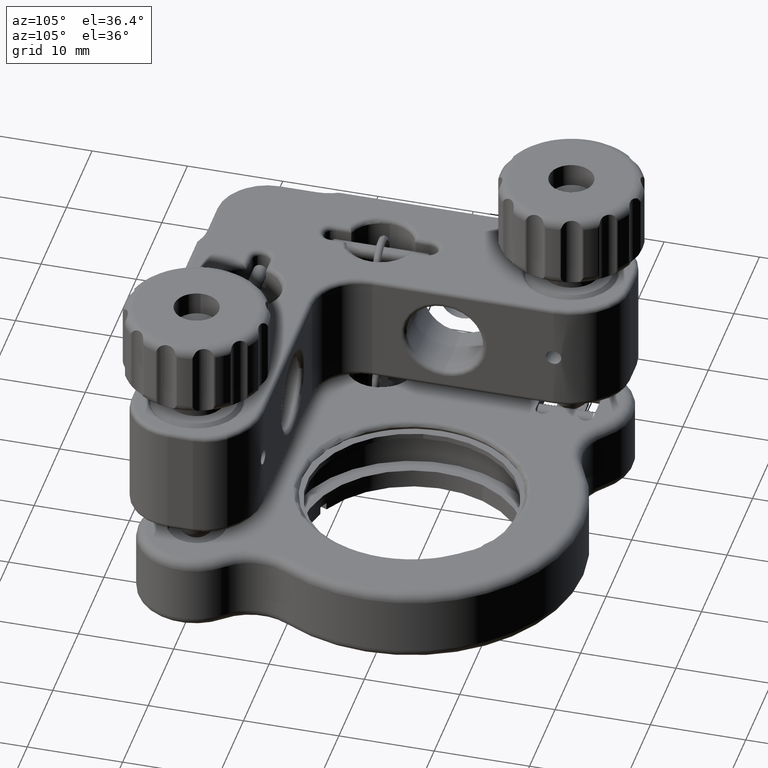
[diagram: clean part render]
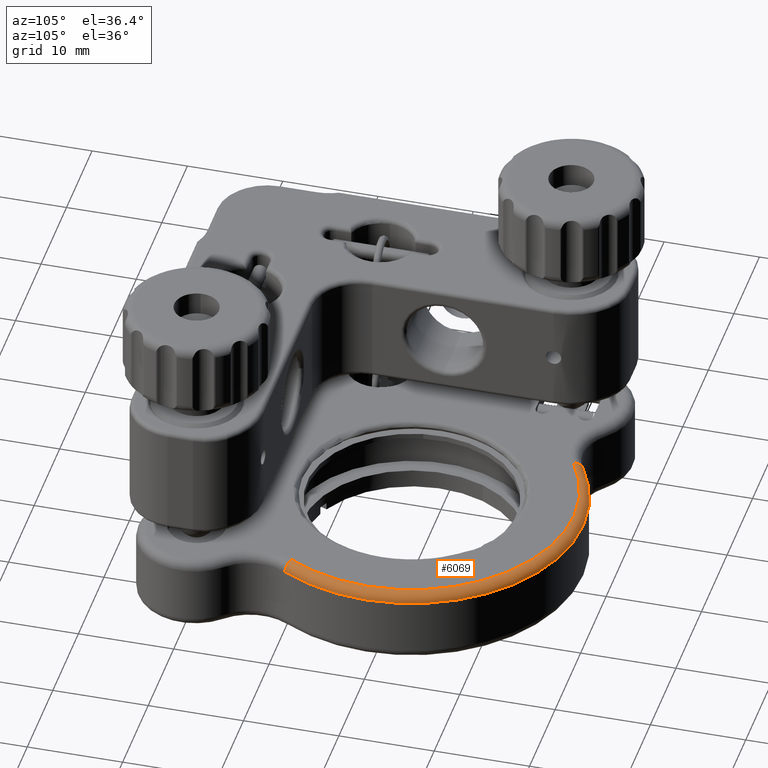
[diagram: same view with one face highlighted and labeled with its STEP entity id]
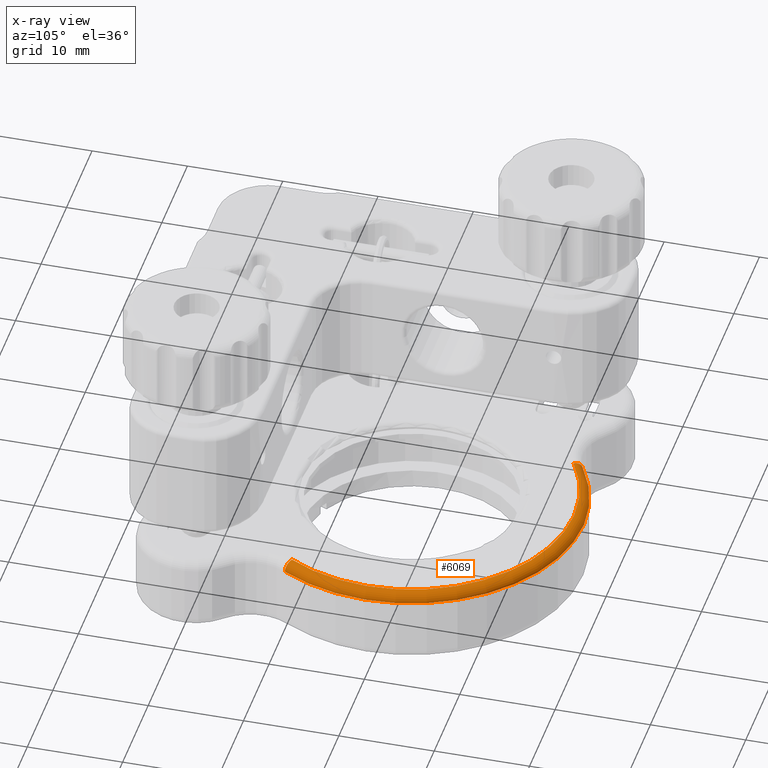
[diagram: x-ray of the same camera — body ghosted, the highlighted face saturated]
A machine part, auxiliary view. The second image highlights one B-rep face of the part: STEP entity #6069.
The next image is the same camera in x-ray: the body ghosted, the highlighted face saturated — about 0% of this face is hidden behind the body in this view.
In plain terms, the highlighted toroidal blend (fillet) surface has major radius 17 mm and minor (blend) radius 1 mm.
Its self-contained STEP definition (entity closure, byte-faithful):
#804 = AXIS2_PLACEMENT_3D ( 'NONE', #6306, #7773, #11176 ) ;
#969 = EDGE_CURVE ( 'NONE', #10167, #1074, #20775, .T. ) ;
#980 = AXIS2_PLACEMENT_3D ( 'NONE', #19060, #20862, #17644 ) ;
#1074 = VERTEX_POINT ( 'NONE', #2043 ) ;
#1275 = EDGE_LOOP ( 'NONE', ( #20494, #20114, #18115, #3179 ) ) ;
#1525 = EDGE_CURVE ( 'NONE', #11136, #20733, #15656, .T. ) ;
#1817 = DIRECTION ( 'NONE',  ( 0.5099363411707564800, -0.8602121412496931400, 0.0000000000000000000 ) ) ;
#1873 = TOROIDAL_SURFACE ( 'NONE', #6043, 17.00000000000001100, 1.000000000000000000 ) ;
#1881 = CARTESIAN_POINT ( 'NONE',  ( 10.83108220009710500, 34.12360640124479300, -10.99999999999998900 ) ) ;
#2043 = CARTESIAN_POINT ( 'NONE',  ( 10.83108220009710500, 34.12360640124479300, -9.999999999999987600 ) ) ;
#3179 = ORIENTED_EDGE ( 'NONE', *, *, #969, .F. ) ;
#4365 = DIRECTION ( 'NONE',  ( 3.911801438327713800E-016, 1.942890293094031600E-016, -1.000000000000000000 ) ) ;
#4894 = CARTESIAN_POINT ( 'NONE',  ( 10.32114585892637300, 34.98381854249449000, -10.99999999999998900 ) ) ;
#6043 = AXIS2_PLACEMENT_3D ( 'NONE', #18695, #4365, #9041 ) ;
#6069 = ADVANCED_FACE ( 'NONE', ( #7013 ), #1873, .T. ) ;
#6114 = DIRECTION ( 'NONE',  ( -3.911801438327713800E-016, -1.942890293094031600E-016, 1.000000000000000000 ) ) ;
#6306 = CARTESIAN_POINT ( 'NONE',  ( 34.12360640124476400, 10.83108220009716000, -10.99999999999998600 ) ) ;
#6487 = CARTESIAN_POINT ( 'NONE',  ( 34.12360640124476400, 10.83108220009715700, -9.999999999999984000 ) ) ;
#6817 = DIRECTION ( 'NONE',  ( -0.8602121412496935800, -0.5099363411707554800, -4.355729458764024800E-016 ) ) ;
#6953 = AXIS2_PLACEMENT_3D ( 'NONE', #1881, #6817, #1817 ) ;
#7013 = FACE_OUTER_BOUND ( 'NONE', #1275, .T. ) ;
#7768 = EDGE_CURVE ( 'NONE', #10167, #20733, #11491, .T. ) ;
#7773 = DIRECTION ( 'NONE',  ( 0.5099363411707561500, 0.8602121412496933600, 3.666067532082974000E-016 ) ) ;
#8590 = CIRCLE ( 'NONE', #6953, 0.9999999999999982200 ) ;
#9041 = DIRECTION ( 'NONE',  ( 1.156482317317870500E-015, -1.000000000000000000, -1.942890293094026900E-016 ) ) ;
#9503 = DIRECTION ( 'NONE',  ( 2.040851148208007000E-016, -1.000000000000000000, -2.040851148208007000E-016 ) ) ;
#10167 = VERTEX_POINT ( 'NONE', #6487 ) ;
#11136 = VERTEX_POINT ( 'NONE', #4894 ) ;
#11159 = AXIS2_PLACEMENT_3D ( 'NONE', #20663, #6114, #9503 ) ;
#11176 = DIRECTION ( 'NONE',  ( -0.8602121412496922500, 0.5099363411707578100, 0.0000000000000000000 ) ) ;
#11491 = CIRCLE ( 'NONE', #804, 0.9999999999999992200 ) ;
#12927 = CARTESIAN_POINT ( 'NONE',  ( 34.98381854249446100, 10.32114585892640700, -10.99999999999998600 ) ) ;
#15656 = CIRCLE ( 'NONE', #980, 18.00000000000001400 ) ;
#16392 = EDGE_CURVE ( 'NONE', #1074, #11136, #8590, .T. ) ;
#17644 = DIRECTION ( 'NONE',  ( 1.156482317317870500E-015, -1.000000000000000000, -1.927470528863117600E-016 ) ) ;
#18115 = ORIENTED_EDGE ( 'NONE', *, *, #16392, .F. ) ;
#18695 = CARTESIAN_POINT ( 'NONE',  ( 19.49999999999997500, 19.49999999999998600, -10.99999999999998900 ) ) ;
#19060 = CARTESIAN_POINT ( 'NONE',  ( 19.49999999999997500, 19.49999999999998600, -10.99999999999998900 ) ) ;
#20114 = ORIENTED_EDGE ( 'NONE', *, *, #1525, .F. ) ;
#20494 = ORIENTED_EDGE ( 'NONE', *, *, #7768, .T. ) ;
#20663 = CARTESIAN_POINT ( 'NONE',  ( 19.49999999999997500, 19.49999999999998600, -9.999999999999987600 ) ) ;
#20733 = VERTEX_POINT ( 'NONE', #12927 ) ;
#20775 = CIRCLE ( 'NONE', #11159, 17.00000000000001100 ) ;
#20862 = DIRECTION ( 'NONE',  ( 3.911801438327713800E-016, 1.942890293094031600E-016, -1.000000000000000000 ) ) ;